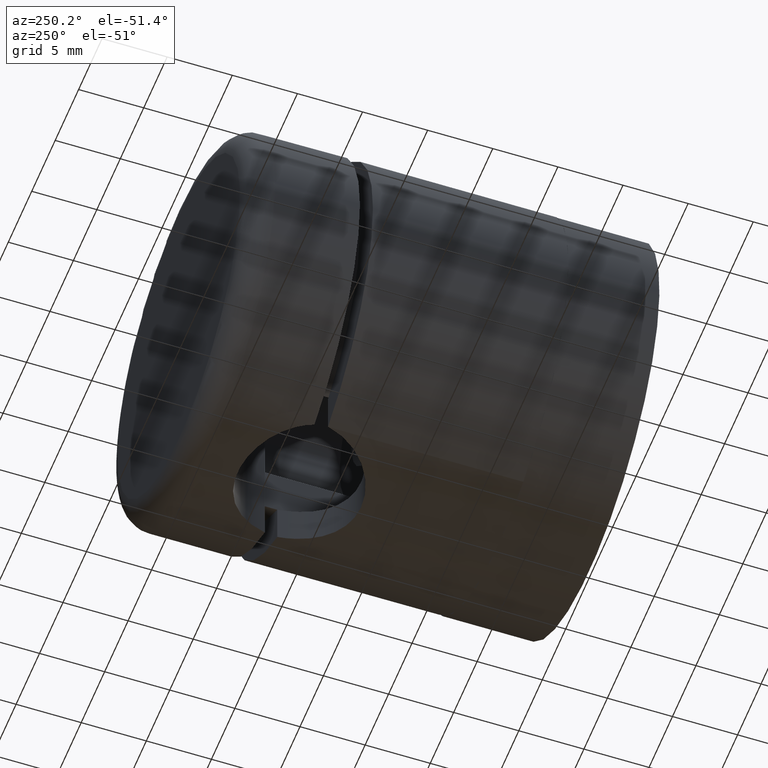
[diagram: clean part render]
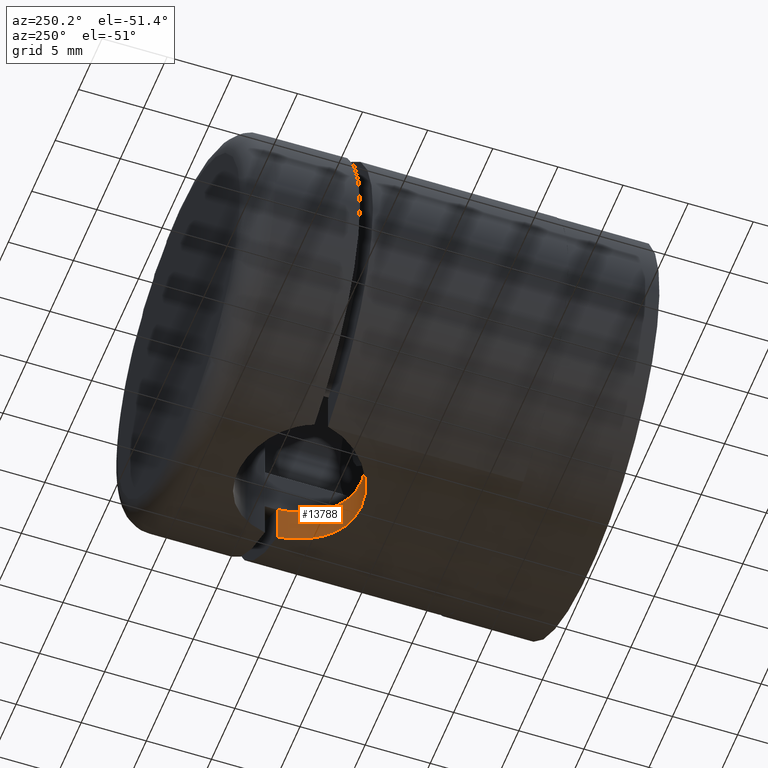
[diagram: same view with one face highlighted and labeled with its STEP entity id]
A machine part, auxiliary view. The second image highlights one B-rep face of the part: STEP entity #13788.
In plain terms, the highlighted cylindrical surface (partial cylindrical patch) has radius 5.5 mm, axis along (0, 0, 1).
Its self-contained STEP definition (entity closure, byte-faithful):
#36 = CARTESIAN_POINT ( 'NONE',  ( 2.186136351221591700, 4.057009307421264300, -14.84293594266602800 ) ) ;
#446 = CARTESIAN_POINT ( 'NONE',  ( 5.408326913195983500, 0.0000000000000000000, -10.82404730218784600 ) ) ;
#999 = CARTESIAN_POINT ( 'NONE',  ( -5.261912093672415300, 0.6324083223951462200, -10.89668410586820400 ) ) ;
#1059 = CARTESIAN_POINT ( 'NONE',  ( 1.593318096538468600, 4.273915628978379300, -11.99851083543485900 ) ) ;
#1141 = LINE ( 'NONE', #2370, #12983 ) ;
#1226 = CARTESIAN_POINT ( 'NONE',  ( -4.902401565767061000, 1.513154288648235400, -14.17726361091692200 ) ) ;
#1227 = CARTESIAN_POINT ( 'NONE',  ( -4.900647048591753000, 1.516413680271334400, -11.06451977712266600 ) ) ;
#1273 = EDGE_CURVE ( 'NONE', #6960, #16305, #12276, .T. ) ;
#1281 = CARTESIAN_POINT ( 'NONE',  ( 0.1647256333629997800, 4.499893640865840500, -14.99996100165796000 ) ) ;
#1334 = CARTESIAN_POINT ( 'NONE',  ( -2.467737128583813000, 3.925532375043999000, -14.79825897134503500 ) ) ;
#1347 = CARTESIAN_POINT ( 'NONE',  ( 5.349492797923304900, 0.3181941290433019700, -14.01381124058383200 ) ) ;
#1398 = CARTESIAN_POINT ( 'NONE',  ( -5.262353101944011500, 0.6307643351268347200, -14.04712911263593300 ) ) ;
#1541 = VERTEX_POINT ( 'NONE', #17040 ) ;
#2311 = B_SPLINE_CURVE_WITH_KNOTS ( 'NONE', 3,
 ( #14975, #10452, #2346, #14279, #3739, #14224, #6364, #9010, #3849, #6248, #11849, #13067, #7851, #1059, #14390, #11629, #16889, #7788, #12952, #13124, #6420, #17061, #4929, #2520, #7617, #9124, #14452, #3678, #17114, #8959, #7733, #1227, #3907, #999, #10340, #2400 ),
 .UNSPECIFIED., .F., .F.,
 ( 4, 2, 2, 2, 2, 2, 2, 2, 2, 2, 2, 2, 2, 2, 2, 2, 2, 4 ),
 ( 0.0000000000000000000, 0.0009638465020814356500, 0.001927693004162871300, 0.002891539506244306700, 0.003855386008325742600, 0.004819232510407178900, 0.005783079012488613400, 0.006746925514570050600, 0.007228848765610769600, 0.007710772016651486900, 0.008674618518732923200, 0.009638465020814363000, 0.01060231152289579900, 0.01156615802497723600, 0.01253000452705867400, 0.01349385102914011200, 0.01445769753122155000, 0.01542154403330298800 ),
 .UNSPECIFIED. ) ;
#2346 = CARTESIAN_POINT ( 'NONE',  ( 5.263297344492659000, 0.6273324226969827500, -10.89599605023346600 ) ) ;
#2370 = CARTESIAN_POINT ( 'NONE',  ( -5.408326913195983500, 0.0000000000000000000, -15.00000000000000000 ) ) ;
#2400 = CARTESIAN_POINT ( 'NONE',  ( -5.408326913195983500, 0.0000000000000000000, -10.82404730218784600 ) ) ;
#2519 = CARTESIAN_POINT ( 'NONE',  ( -2.180549435041107200, 4.059354311715037700, -14.84373918925509800 ) ) ;
#2520 = CARTESIAN_POINT ( 'NONE',  ( -2.187411871613283800, 4.056419985749980300, -11.90452027187688700 ) ) ;
#2630 = CARTESIAN_POINT ( 'NONE',  ( -0.3186802587510436100, 4.500209202673628000, -15.00007670763280900 ) ) ;
#2836 = CARTESIAN_POINT ( 'NONE',  ( 4.905695420764534000, 1.507159925378625600, -14.17614438955846400 ) ) ;
#3050 = FACE_OUTER_BOUND ( 'NONE', #10273, .T. ) ;
#3085 = VECTOR ( 'NONE', #4066, 1000.000000000000000 ) ;
#3678 = CARTESIAN_POINT ( 'NONE',  ( -3.767863277517357700, 3.018915990846251500, -11.50115516999819200 ) ) ;
#3739 = CARTESIAN_POINT ( 'NONE',  ( 4.904718020988402000, 1.508935918661852300, -11.06274399771604400 ) ) ;
#3815 = DIRECTION ( 'NONE',  ( -0.0000000000000000000, -0.0000000000000000000, 1.000000000000000000 ) ) ;
#3849 = CARTESIAN_POINT ( 'NONE',  ( 3.772108643188941900, 3.015072852775396100, -11.49979233962306300 ) ) ;
#3866 = DIRECTION ( 'NONE',  ( 1.000000000000000000, 0.0000000000000000000, 0.0000000000000000000 ) ) ;
#3907 = CARTESIAN_POINT ( 'NONE',  ( -5.036999916732669100, 1.231839521873379800, -11.00245769014595100 ) ) ;
#3961 = CARTESIAN_POINT ( 'NONE',  ( -5.038543037077493700, 1.228191318037866500, -14.12895185567993800 ) ) ;
#4002 = ORIENTED_EDGE ( 'NONE', *, *, #17205, .F. ) ;
#4066 = DIRECTION ( 'NONE',  ( 0.0000000000000000000, 0.0000000000000000000, -1.000000000000000000 ) ) ;
#4215 = CARTESIAN_POINT ( 'NONE',  ( 5.042370113418784600, 1.219222673793528600, -14.12757641437960000 ) ) ;
#4841 = DIRECTION ( 'NONE',  ( -0.0000000000000000000, -0.0000000000000000000, 1.000000000000000000 ) ) ;
#4929 = CARTESIAN_POINT ( 'NONE',  ( -1.586990200250356900, 4.275757374318488700, -11.99932646876114700 ) ) ;
#4951 = CARTESIAN_POINT ( 'NONE',  ( 0.0000000000000000000, -1.000000000000000900, -15.00000000000000000 ) ) ;
#5138 = CARTESIAN_POINT ( 'NONE',  ( 5.263908589419680900, 0.6253344267602187800, -14.04653615903463600 ) ) ;
#5254 = CARTESIAN_POINT ( 'NONE',  ( 0.8064407087988292300, 4.442890368197169900, -14.97913142389911400 ) ) ;
#5274 = EDGE_CURVE ( 'NONE', #10670, #1541, #2311, .T. ) ;
#5310 = CARTESIAN_POINT ( 'NONE',  ( 3.281584484615416700, 3.425131928019541600, -14.63878197630168300 ) ) ;
#6235 = ORIENTED_EDGE ( 'NONE', *, *, #1273, .F. ) ;
#6248 = CARTESIAN_POINT ( 'NONE',  ( 3.288051334210283700, 3.420218552595859900, -11.64743516376339200 ) ) ;
#6364 = CARTESIAN_POINT ( 'NONE',  ( 4.401284965257938000, 2.313117119416107800, -11.27320680228369600 ) ) ;
#6419 = CARTESIAN_POINT ( 'NONE',  ( -3.765093384269553800, 3.021619047551798300, -14.52191711518693200 ) ) ;
#6420 = CARTESIAN_POINT ( 'NONE',  ( -0.6388280047289789400, 4.472215164229642600, -12.08729301602157800 ) ) ;
#6531 = CARTESIAN_POINT ( 'NONE',  ( -3.281008855657648200, 3.425418493769586200, -14.63888608404770900 ) ) ;
#6591 = CARTESIAN_POINT ( 'NONE',  ( -5.408326913195983500, 0.0000000000000000000, -13.99106857963322200 ) ) ;
#6649 = CARTESIAN_POINT ( 'NONE',  ( -3.988335724543677700, 2.800412593435372100, -14.46162475589181900 ) ) ;
#6960 = VERTEX_POINT ( 'NONE', #17201 ) ;
#7617 = CARTESIAN_POINT ( 'NONE',  ( -2.474678127362161600, 3.922065290859323200, -11.84760143108594800 ) ) ;
#7733 = CARTESIAN_POINT ( 'NONE',  ( -4.582262556930240600, 2.058030275272454200, -11.20012541235877500 ) ) ;
#7788 = CARTESIAN_POINT ( 'NONE',  ( 0.3313520057493878900, 4.492391652561731300, -12.09653666980091200 ) ) ;
#7849 = CARTESIAN_POINT ( 'NONE',  ( 4.400495468401223000, 2.314286419792826300, -14.34156298592487600 ) ) ;
#7851 = CARTESIAN_POINT ( 'NONE',  ( 2.195471221358476400, 4.052994630367828100, -11.90305973021186700 ) ) ;
#8024 = CARTESIAN_POINT ( 'NONE',  ( 5.408326913195983500, 0.0000000000000000000, -15.00000000000000000 ) ) ;
#8027 = CARTESIAN_POINT ( 'NONE',  ( -4.397549858975418500, 2.318359981954757600, -14.34248819660381200 ) ) ;
#8663 = CYLINDRICAL_SURFACE ( 'NONE', #8846, 5.500000000000000000 ) ;
#8846 = AXIS2_PLACEMENT_3D ( 'NONE', #4951, #3815, #3866 ) ;
#8959 = CARTESIAN_POINT ( 'NONE',  ( -4.398675709523646800, 2.316823386476578200, -11.27426479264992800 ) ) ;
#9010 = CARTESIAN_POINT ( 'NONE',  ( 3.996805554644400800, 2.791253058124364200, -11.42287382013934200 ) ) ;
#9124 = CARTESIAN_POINT ( 'NONE',  ( -3.024501499352372700, 3.604687746410392400, -11.71930382677784100 ) ) ;
#9172 = CARTESIAN_POINT ( 'NONE',  ( 4.583053730004657200, 2.057338214955139100, -14.28371575686139200 ) ) ;
#9235 = CARTESIAN_POINT ( 'NONE',  ( 3.023292340873302100, 3.605347219611654700, -14.69479287150711100 ) ) ;
#9322 = LINE ( 'NONE', #8024, #3085 ) ;
#9353 = CARTESIAN_POINT ( 'NONE',  ( -4.582958142209401200, 2.057119601412888500, -14.28372637907282400 ) ) ;
#9414 = ORIENTED_EDGE ( 'NONE', *, *, #12513, .F. ) ;
#10273 = EDGE_LOOP ( 'NONE', ( #9414, #10776, #4002, #6235 ) ) ;
#10340 = CARTESIAN_POINT ( 'NONE',  ( -5.349228096835003200, 0.3196257190631192100, -10.85357652634400300 ) ) ;
#10452 = CARTESIAN_POINT ( 'NONE',  ( 5.349228965330493000, 0.3196210219555940000, -10.85357609239286900 ) ) ;
#10514 = CARTESIAN_POINT ( 'NONE',  ( 1.277190789690867400, 4.359141012775717500, -14.94883550687905000 ) ) ;
#10627 = CARTESIAN_POINT ( 'NONE',  ( -1.580708060889963100, 4.277615362677078500, -14.91954258626996800 ) ) ;
#10670 = VERTEX_POINT ( 'NONE', #446 ) ;
#10776 = ORIENTED_EDGE ( 'NONE', *, *, #5274, .T. ) ;
#11321 = CARTESIAN_POINT ( 'NONE',  ( -5.408326913195983500, 0.0000000000000000000, -13.99106857963322200 ) ) ;
#11629 = CARTESIAN_POINT ( 'NONE',  ( 0.8128004017383309000, 4.441962898831468100, -12.07370381609409500 ) ) ;
#11786 = CARTESIAN_POINT ( 'NONE',  ( 3.768492656340879600, 3.018588360251824200, -14.52106048394774300 ) ) ;
#11849 = CARTESIAN_POINT ( 'NONE',  ( 3.030994732995760700, 3.600243693172389100, -11.71756647269834200 ) ) ;
#11893 = CARTESIAN_POINT ( 'NONE',  ( -3.017576781508596500, 3.609211004184758900, -14.69600032275738000 ) ) ;
#12276 = B_SPLINE_CURVE_WITH_KNOTS ( 'NONE', 3,
 ( #15733, #1347, #5138, #4215, #2836, #9172, #7849, #14510, #11786, #5310, #9235, #14388, #36, #17168, #10514, #5254, #13290, #15833, #1281, #2630, #14566, #15951, #10627, #2519, #1334, #11893, #6531, #6419, #6649, #8027, #9353, #1226, #3961, #1398, #17113, #6591 ),
 .UNSPECIFIED., .F., .F.,
 ( 4, 2, 2, 2, 2, 2, 2, 2, 2, 2, 2, 2, 2, 2, 2, 2, 2, 4 ),
 ( 0.0000000000000000000, 0.0009584968756372474800, 0.001916993751274494500, 0.002875490626911741300, 0.003833987502548988600, 0.004792484378186235400, 0.005750981253823482700, 0.006709478129460730800, 0.007188726567279354900, 0.007667975005097978100, 0.008626471880735224500, 0.009584968756372470900, 0.01054346563200971900, 0.01150196250764696500, 0.01246045938328421400, 0.01341895625892146200, 0.01437745313455871000, 0.01533595001019595600 ),
 .UNSPECIFIED. ) ;
#12513 = EDGE_CURVE ( 'NONE', #10670, #6960, #9322, .T. ) ;
#12952 = CARTESIAN_POINT ( 'NONE',  ( 0.1676404178473022400, 4.499833315568300100, -12.09992423437969200 ) ) ;
#12983 = VECTOR ( 'NONE', #4841, 1000.000000000000000 ) ;
#13067 = CARTESIAN_POINT ( 'NONE',  ( 2.486113646590730300, 3.916137716160492200, -11.84514803832301800 ) ) ;
#13124 = CARTESIAN_POINT ( 'NONE',  ( -0.3185982446311980700, 4.500324935259904200, -12.10014769778525900 ) ) ;
#13290 = CARTESIAN_POINT ( 'NONE',  ( 0.6478882639460502600, 4.464075514007205900, -14.98685907516171400 ) ) ;
#13788 = ADVANCED_FACE ( 'NONE', ( #3050 ), #8663, .F. ) ;
#14224 = CARTESIAN_POINT ( 'NONE',  ( 4.583061498689701800, 2.057215335658922200, -11.19982637917386900 ) ) ;
#14279 = CARTESIAN_POINT ( 'NONE',  ( 5.041451995980191100, 1.221322021394386100, -11.00039956708273300 ) ) ;
#14388 = CARTESIAN_POINT ( 'NONE',  ( 2.476893163169252300, 3.920825118800037600, -14.79669673856718700 ) ) ;
#14390 = CARTESIAN_POINT ( 'NONE',  ( 1.285314901565665300, 4.357273965844006700, -12.03569021415629000 ) ) ;
#14452 = CARTESIAN_POINT ( 'NONE',  ( -3.286282619198637600, 3.421405428853645500, -11.64790584050167300 ) ) ;
#14510 = CARTESIAN_POINT ( 'NONE',  ( 3.994134752852486000, 2.794172164767813700, -14.46000265638724400 ) ) ;
#14566 = CARTESIAN_POINT ( 'NONE',  ( -0.6371488922200463400, 4.472310832825702900, -14.98978074203081700 ) ) ;
#14975 = CARTESIAN_POINT ( 'NONE',  ( 5.408326913195983500, 0.0000000000000000000, -10.82404730218784600 ) ) ;
#15733 = CARTESIAN_POINT ( 'NONE',  ( 5.408326913195983500, 0.0000000000000000000, -13.99106857963322200 ) ) ;
#15833 = CARTESIAN_POINT ( 'NONE',  ( 0.3274075322932198900, 4.492602728500377100, -14.99728336896765100 ) ) ;
#15951 = CARTESIAN_POINT ( 'NONE',  ( -1.266703459141648400, 4.361679485806416100, -14.94974741430816300 ) ) ;
#16305 = VERTEX_POINT ( 'NONE', #11321 ) ;
#16889 = CARTESIAN_POINT ( 'NONE',  ( 0.6535351965135541800, 4.463428590524626900, -12.08341364443303200 ) ) ;
#17040 = CARTESIAN_POINT ( 'NONE',  ( -5.408326913195983500, 0.0000000000000000000, -10.82404730218784600 ) ) ;
#17061 = CARTESIAN_POINT ( 'NONE',  ( -1.271680973656420100, 4.360603279901539500, -12.03717496657875500 ) ) ;
#17113 = CARTESIAN_POINT ( 'NONE',  ( -5.349494117437013900, 0.3181869926818028900, -14.01381073051832400 ) ) ;
#17114 = CARTESIAN_POINT ( 'NONE',  ( -3.990267270910214900, 2.798346019168614300, -11.42519854177781500 ) ) ;
#17168 = CARTESIAN_POINT ( 'NONE',  ( 1.584514798646322400, 4.276537513781983400, -14.91915722811078700 ) ) ;
#17201 = CARTESIAN_POINT ( 'NONE',  ( 5.408326913195983500, 0.0000000000000000000, -13.99106857963322200 ) ) ;
#17205 = EDGE_CURVE ( 'NONE', #16305, #1541, #1141, .T. ) ;